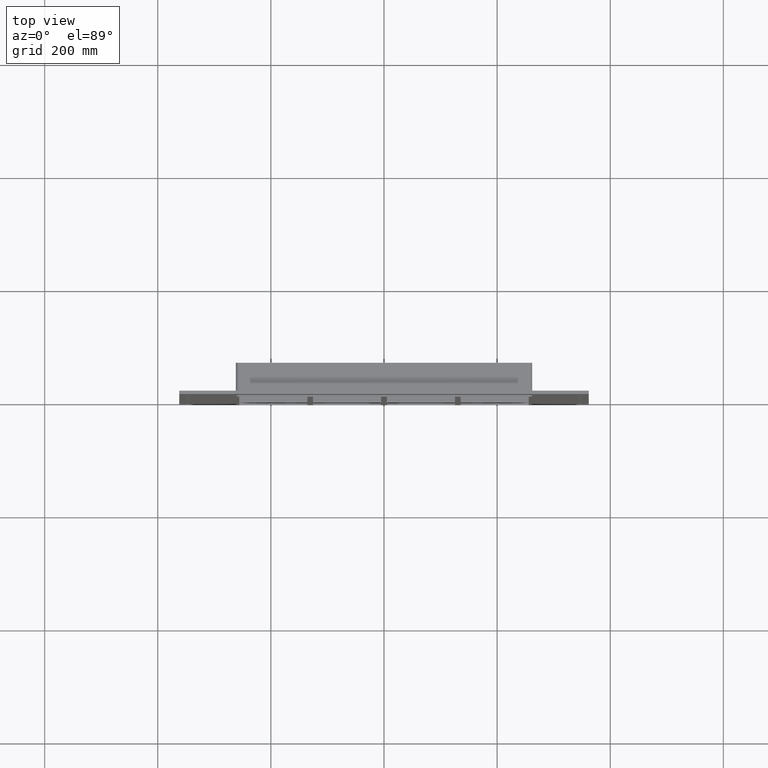
[diagram: clean part render]
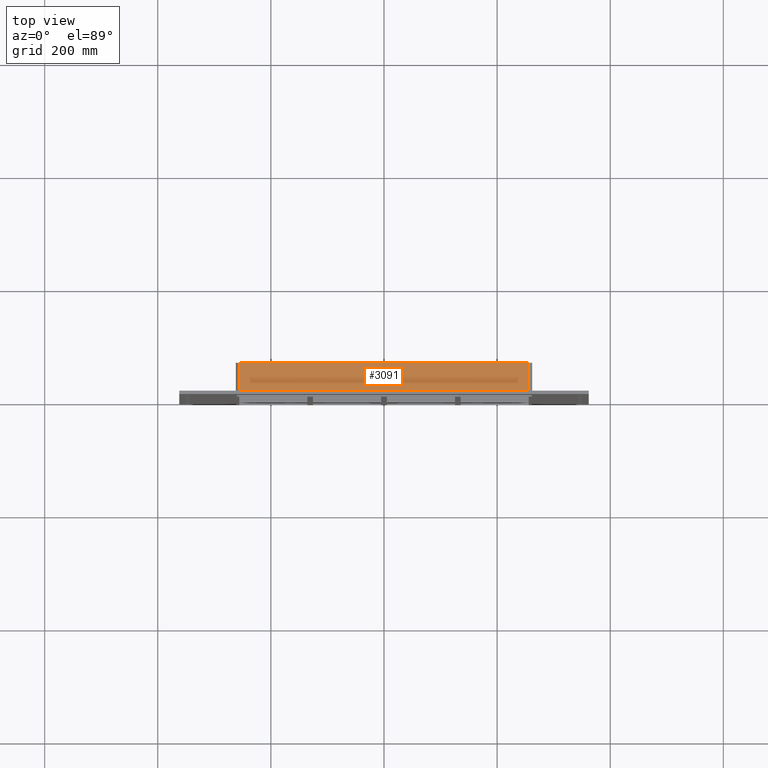
[diagram: same view with one face highlighted and labeled with its STEP entity id]
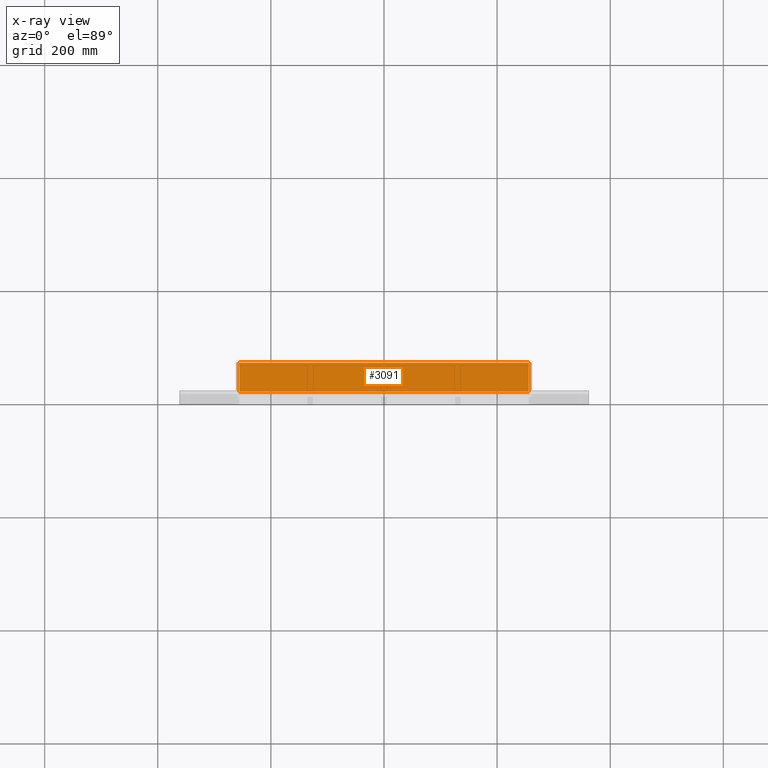
[diagram: x-ray of the same camera — body ghosted, the highlighted face saturated]
A machine part, top view. The second image highlights one B-rep face of the part: STEP entity #3091.
The next image is the same camera in x-ray: the body ghosted, the highlighted face saturated — about 0% of this face is hidden behind the body in this view.
In plain terms, the highlighted planar face has unit normal (0, 0, 1).
Its self-contained STEP definition (entity closure, byte-faithful):
#1299=CARTESIAN_POINT('',(-256.0,57.0,435.00000000000011));
#1300=VERTEX_POINT('',#1299);
#1308=CARTESIAN_POINT('',(256.0,57.0,435.00000000000011));
#1309=VERTEX_POINT('',#1308);
#1310=CARTESIAN_POINT('',(-256.0,57.0,435.00000000000011));
#1311=DIRECTION('',(1.0,0.0,0.0));
#1312=VECTOR('',#1311,512.0);
#1313=LINE('',#1310,#1312);
#1314=EDGE_CURVE('',#1300,#1309,#1313,.T.);
#2535=CARTESIAN_POINT('',(256.0,6.000000000000001,435.00000000000011));
#2536=VERTEX_POINT('',#2535);
#2544=CARTESIAN_POINT('',(-256.0,6.000000000000001,435.00000000000011));
#2545=VERTEX_POINT('',#2544);
#2546=CARTESIAN_POINT('',(-256.0,6.000000000000001,435.00000000000011));
#2547=DIRECTION('',(1.0,0.0,0.0));
#2548=VECTOR('',#2547,511.99999999999994);
#2549=LINE('',#2546,#2548);
#2550=EDGE_CURVE('',#2545,#2536,#2549,.T.);
#2855=CARTESIAN_POINT('',(256.0,57.0,435.00000000000011));
#2856=DIRECTION('',(0.0,-1.0,0.0));
#2857=VECTOR('',#2856,51.0);
#2858=LINE('',#2855,#2857);
#2859=EDGE_CURVE('',#1309,#2536,#2858,.T.);
#3069=CARTESIAN_POINT('',(-256.0,6.000000000000001,435.00000000000011));
#3070=DIRECTION('',(0.0,1.0,0.0));
#3071=VECTOR('',#3070,51.0);
#3072=LINE('',#3069,#3071);
#3073=EDGE_CURVE('',#2545,#1300,#3072,.T.);
#3080=CARTESIAN_POINT('',(-262.0,0.0,435.00000000000011));
#3081=DIRECTION('',(0.0,0.0,1.0));
#3082=DIRECTION('',(1.0,0.0,0.0));
#3083=AXIS2_PLACEMENT_3D('',#3080,#3081,#3082);
#3084=PLANE('',#3083);
#3085=ORIENTED_EDGE('',*,*,#2550,.T.);
#3086=ORIENTED_EDGE('',*,*,#2859,.F.);
#3087=ORIENTED_EDGE('',*,*,#1314,.F.);
#3088=ORIENTED_EDGE('',*,*,#3073,.F.);
#3089=EDGE_LOOP('',(#3085,#3086,#3087,#3088));
#3090=FACE_OUTER_BOUND('',#3089,.T.);
#3091=ADVANCED_FACE('',(#3090),#3084,.T.);